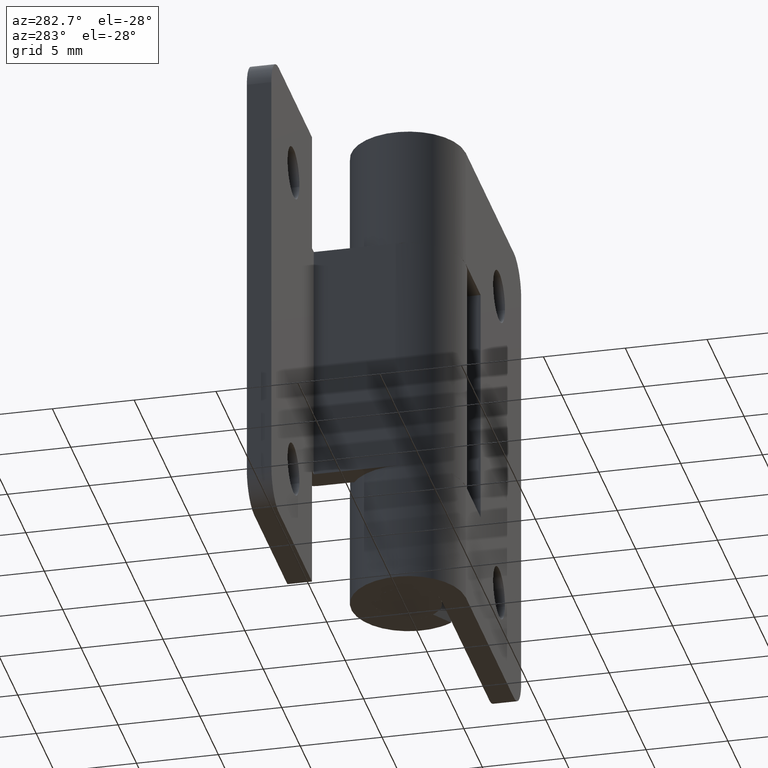
[diagram: clean part render]
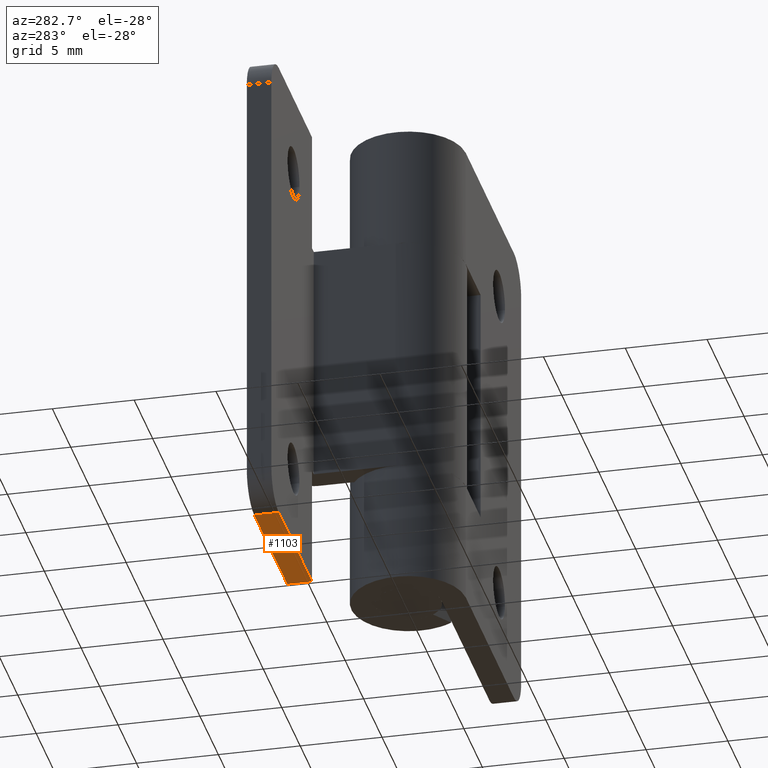
[diagram: same view with one face highlighted and labeled with its STEP entity id]
A machine part, auxiliary view. The second image highlights one B-rep face of the part: STEP entity #1103.
In plain terms, the highlighted face is a freeform B-spline surface patch.
Its self-contained STEP definition (entity closure, byte-faithful):
#775=CARTESIAN_POINT('',(-4.0,5.0,0.0));
#776=VERTEX_POINT('',#775);
#782=CARTESIAN_POINT('',(-4.0,6.499998000000000,0.0));
#783=VERTEX_POINT('',#782);
#784=CARTESIAN_POINT('',(-4.0,6.499998000000000,0.0));
#785=CARTESIAN_POINT('',(-4.0,5.0,0.0));
#786=QUASI_UNIFORM_CURVE('',1,(#784,#785),.UNSPECIFIED.,.F.,.U.);
#787=EDGE_CURVE('',#783,#776,#786,.T.);
#1039=CARTESIAN_POINT('',(-13.0,5.0,0.0));
#1040=VERTEX_POINT('',#1039);
#1061=CARTESIAN_POINT('',(-13.0,6.499998000000000,0.0));
#1062=VERTEX_POINT('',#1061);
#1076=CARTESIAN_POINT('',(-13.0,5.0,0.0));
#1077=CARTESIAN_POINT('',(-13.0,6.499998000000000,0.0));
#1078=QUASI_UNIFORM_CURVE('',1,(#1076,#1077),.UNSPECIFIED.,.F.,.U.);
#1079=EDGE_CURVE('',#1040,#1062,#1078,.T.);
#1084=CARTESIAN_POINT('',(-13.449549982556251,4.925075097448240,0.0));
#1085=CARTESIAN_POINT('',(-3.550449776044936,4.925075097448240,0.0));
#1086=CARTESIAN_POINT('',(-13.449549982556251,6.574923050073058,0.0));
#1087=CARTESIAN_POINT('',(-3.550449776044936,6.574923050073058,0.0));
#1088=B_SPLINE_SURFACE_WITH_KNOTS('',1,1,((#1084,#1086),(#1085,#1087)),.UNSPECIFIED.,.F.,.F.,.U.,(2,2),(2,2),(0.0,9.899100206511319),(0.041708331971243,0.958291749985144),.UNSPECIFIED.);
#1089=ORIENTED_EDGE('',*,*,#787,.T.);
#1090=CARTESIAN_POINT('',(-4.0,5.0,0.0));
#1091=CARTESIAN_POINT('',(-13.0,5.0,0.0));
#1092=QUASI_UNIFORM_CURVE('',1,(#1090,#1091),.UNSPECIFIED.,.F.,.U.);
#1093=EDGE_CURVE('',#776,#1040,#1092,.T.);
#1094=ORIENTED_EDGE('',*,*,#1093,.T.);
#1095=ORIENTED_EDGE('',*,*,#1079,.T.);
#1096=CARTESIAN_POINT('',(-13.0,6.499998000000000,0.0));
#1097=CARTESIAN_POINT('',(-4.0,6.499998000000000,0.0));
#1098=QUASI_UNIFORM_CURVE('',1,(#1096,#1097),.UNSPECIFIED.,.F.,.U.);
#1099=EDGE_CURVE('',#1062,#783,#1098,.T.);
#1100=ORIENTED_EDGE('',*,*,#1099,.T.);
#1101=EDGE_LOOP('',(#1089,#1094,#1095,#1100));
#1102=FACE_OUTER_BOUND('',#1101,.T.);
#1103=ADVANCED_FACE('',(#1102),#1088,.F.);